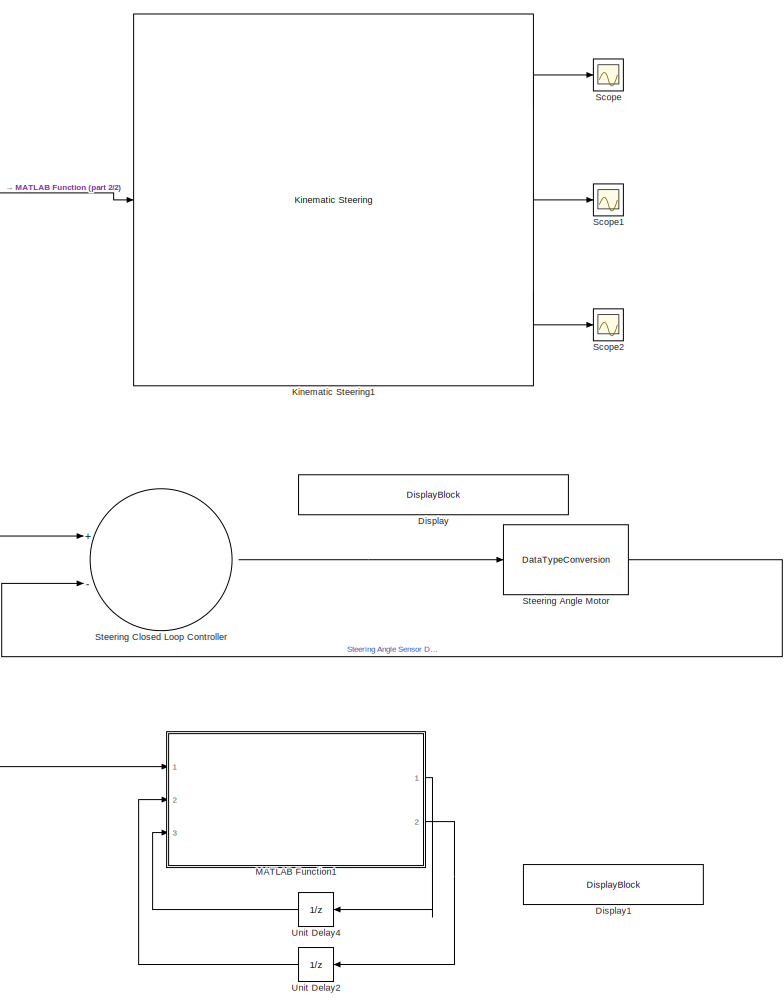
[diagram: root canvas - part 1/2, right side, full height]
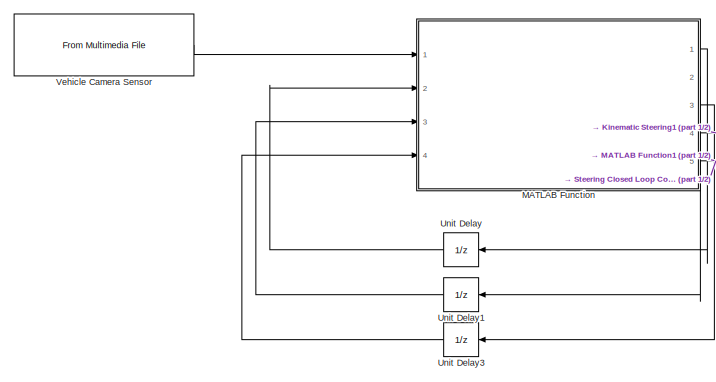
[diagram: root canvas - part 2/2, top left region]
MODEL slx_c340db5ce98e
KIND model
CONFIG AbsTol = auto
CONFIG EnableMultiTasking = off
CONFIG FixedStep = auto
CONFIG MaxStep = auto
CONFIG MinStep = auto
CONFIG RelTol = 1e-3
CONFIG SampleTimeConstraint = Unconstrained
CONFIG Solver = VariableStepAuto
CONFIG SolverName = VariableStepAuto
CONFIG StartTime = 0.0
CONFIG StopTime = 10.0
BLOCK [DisplayBlock] Display
  Commented = on
  LabelPosition = Hide
  WebBlockId = 23
BLOCK [DisplayBlock] Display1
  LabelPosition = Hide
  WebBlockId = 32
BLOCK [Reference] Kinematic Steering1  REF=vehdynlibsteering/Kinematic Steering
  Ports = [1, 3]
  SourceBlock = vehdynlibsteering/Kinematic Steering
  SourceProductBaseCode = VE
  SourceProductName = Vehicle Dynamics Blockset
  SourceType = Kinematic Steering
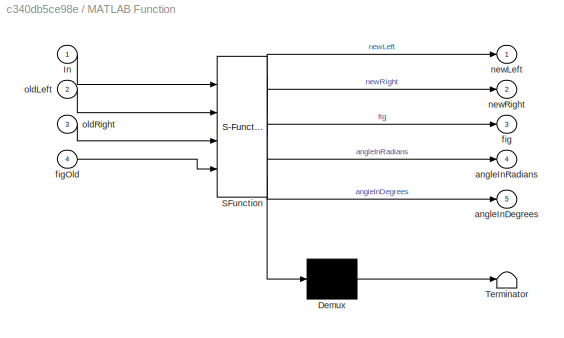
BLOCK [SubSystem] MATLAB Function
  ErrorFcn = Stateflow.Translate.translate
  PermitHierarchicalResolution = ExplicitOnly
  Ports = [4, 5]
  RequestExecContextInheritance = off
  SFBlockType = MATLAB Function
  TreatAsAtomicUnit = on
BLOCK [Demux] MATLAB Function/ Demux 
  Outputs = 1
  Ports = [1, 1]
BLOCK [S-Function] MATLAB Function/ SFunction 
  EnableBusSupport = on
  FunctionName = sf_sfun
  PortCounts = [4 6]
  Ports = [4, 6]
  SFcnIsStateOwnerBlock = off
  SFunctionDeploymentMode = off
  Tag = Stateflow S-Function CPower_LKA 2
BLOCK [Terminator] MATLAB Function/ Terminator 
BLOCK [Inport] MATLAB Function/In
  IconDisplay = Port number
BLOCK [Outport] MATLAB Function/angleInDegrees
  IconDisplay = Port number
  Port = 5
BLOCK [Outport] MATLAB Function/angleInRadians
  IconDisplay = Port number
  Port = 4
BLOCK [Outport] MATLAB Function/fig
  IconDisplay = Port number
  Port = 3
BLOCK [Inport] MATLAB Function/figOld
  IconDisplay = Port number
  Port = 4
BLOCK [Outport] MATLAB Function/newLeft
  IconDisplay = Port number
BLOCK [Outport] MATLAB Function/newRight
  IconDisplay = Port number
  Port = 2
BLOCK [Inport] MATLAB Function/oldLeft
  IconDisplay = Port number
  Port = 2
BLOCK [Inport] MATLAB Function/oldRight
  IconDisplay = Port number
  Port = 3
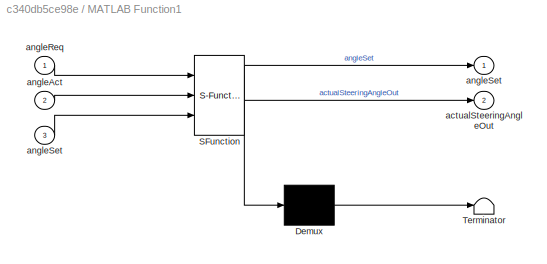
BLOCK [SubSystem] MATLAB Function1
  ErrorFcn = Stateflow.Translate.translate
  PermitHierarchicalResolution = ExplicitOnly
  Ports = [3, 2]
  RequestExecContextInheritance = off
  SFBlockType = MATLAB Function
  TreatAsAtomicUnit = on
BLOCK [Demux] MATLAB Function1/ Demux 
  Outputs = 1
  Ports = [1, 1]
BLOCK [S-Function] MATLAB Function1/ SFunction 
  EnableBusSupport = on
  FunctionName = sf_sfun
  PortCounts = [3 3]
  Ports = [3, 3]
  SFcnIsStateOwnerBlock = off
  SFunctionDeploymentMode = off
  Tag = Stateflow S-Function CPower_LKA 1
BLOCK [Terminator] MATLAB Function1/ Terminator 
BLOCK [Outport] MATLAB Function1/actualSteeringAngleOut
  IconDisplay = Port number
  Port = 2
BLOCK [Inport] MATLAB Function1/angleAct
  IconDisplay = Port number
  Port = 2
BLOCK [Inport] MATLAB Function1/angleReq
  IconDisplay = Port number
BLOCK [Outport] MATLAB Function1/angleSet
  IconDisplay = Port number
BLOCK [Inport] MATLAB Function1/angleSet 
  IconDisplay = Port number
  Port = 3
BLOCK [Scope] Scope
  Floating = off
  NumInputPorts = 1
  Ports = [1]
  ScopeSpecificationString = Simulink.scopes.TimeScopeBlockCfg('CurrentConfiguration', extmgr.ConfigurationSet(extmgr.Configuration('Core','General UI',true),extmgr.Configuration('Core','Source UI',true),extmgr.Configuration('Sources','WiredSimulink',true),extmgr.Configuration('Visuals','Time Domain',true,'SerializedDisplays',{struct('MinYLimReal','90.00000','MaxYLimReal','110.00000','YLabelReal','','MinYLimMag','90.00000','M...<+1383ch>
BLOCK [Scope] Scope1
  Floating = off
  NumInputPorts = 1
  Ports = [1]
  ScopeSpecificationString = Simulink.scopes.TimeScopeBlockCfg('CurrentConfiguration', extmgr.ConfigurationSet(extmgr.Configuration('Core','General UI',true),extmgr.Configuration('Core','Source UI',true),extmgr.Configuration('Sources','WiredSimulink',true,'DataLoggingVariableName','ScopeData1'),extmgr.Configuration('Visuals','Time Domain',true,'SerializedDisplays',{struct('MinYLimReal','0.00148','MaxYLimReal','0.00917','YLabe...<+1415ch>
BLOCK [Scope] Scope2
  Floating = off
  NumInputPorts = 1
  Ports = [1]
  ScopeSpecificationString = Simulink.scopes.TimeScopeBlockCfg('CurrentConfiguration', extmgr.ConfigurationSet(extmgr.Configuration('Core','General UI',true),extmgr.Configuration('Core','Source UI',true),extmgr.Configuration('Sources','WiredSimulink',true,'DataLoggingVariableName','ScopeData2'),extmgr.Configuration('Visuals','Time Domain',true,'SerializedDisplays',{struct('MinYLimReal','0.00148','MaxYLimReal','0.00917','YLabe...<+1415ch>
BLOCK [DataTypeConversion] Steering Angle Motor
  Commented = on
  RndMeth = Floor
  SaturateOnIntegerOverflow = off
BLOCK [Sum] Steering Closed Loop Controller
  Commented = on
  InputSameDT = off
  Inputs = +-
  OutDataTypeStr = Inherit: Inherit via internal rule
  Ports = [2, 1]
  SaturateOnIntegerOverflow = off
BLOCK [UnitDelay] Unit Delay
  InputProcessing = Elements as channels (sample based)
  SampleTime = -1
BLOCK [UnitDelay] Unit Delay1
  InputProcessing = Elements as channels (sample based)
  SampleTime = -1
BLOCK [UnitDelay] Unit Delay2
  InputProcessing = Elements as channels (sample based)
  SampleTime = -1
BLOCK [UnitDelay] Unit Delay3
  InputProcessing = Elements as channels (sample based)
  SampleTime = -1
BLOCK [UnitDelay] Unit Delay4
  InputProcessing = Elements as channels (sample based)
  SampleTime = -1
BLOCK [Reference] Vehicle Camera Sensor  REF=dspvision/From Multimedia File
  Ports = [0, 1]
  SourceBlock = dspvision/From Multimedia File
  SourceProductBaseCode = VP
  SourceProductName = Computer Vision System Toolbox
  SourceType = From Multimedia File
LINE Kinematic Steering1:1 -> Scope:1
LINE Kinematic Steering1:2 -> Scope1:1
LINE Kinematic Steering1:3 -> Scope2:1
LINE MATLAB Function1:1 -> Unit Delay4:1
LINE MATLAB Function1:2 -> Unit Delay2:1
LINE MATLAB Function:1 -> Unit Delay:1
LINE MATLAB Function:2 -> Unit Delay1:1
LINE MATLAB Function:3 -> Unit Delay3:1
LINE MATLAB Function:4 -> Kinematic Steering1:1
NET MATLAB Function:5 -> MATLAB Function1:1, Steering Closed Loop Controller:1
LINE Steering Angle Motor:1 -> Steering Closed Loop Controller:2
LINE Steering Closed Loop Controller:1 -> Steering Angle Motor:1
LINE Unit Delay1:1 -> MATLAB Function:3
LINE Unit Delay2:1 -> MATLAB Function1:2
LINE Unit Delay3:1 -> MATLAB Function:4
LINE Unit Delay4:1 -> MATLAB Function1:3
LINE Unit Delay:1 -> MATLAB Function:2
LINE Vehicle Camera Sensor:1 -> MATLAB Function:1
note: NET lines group one-source signal fan-out (src -> all destinations, sorted); 1:1 wires keep LINE
CHART MATLAB Function1 states=1 transitions=1
  STATE_LABEL 'eML_blk_kernel()'
  STATE_LABEL 'SCRIPT:\nfunction [angleSet,actualSteeringAngleOut] = steeringAngleController(angleReq, angleAct,angleSet)\n\nif not(angleSet)\n  angleAct = 90; %% assume 90 starting point\nend\n\nif(angleReq>angleAct)\n    actualSteeringAngleOut = angleAct+1;\n    angleSet =1;\n    \nelseif (angleReq<angleAct)\n    actualSteeringAngleOut = angleAct-1;\n    angleSet =1;\nelse\n    actualSteeringAngleOut = angleAct;\n    angleSet...<+9ch>'
CHART MATLAB Function states=1 transitions=1
  STATE_LABEL 'eML_blk_kernel()'
  STATE_LABEL "SCRIPT:\nfunction [newLeft, newRight, fig, angleInRadians, angleInDegrees] =  lane_keep_assist(In, oldLeft, oldRight, figOld)\n\nfig = zeros(1,3);\nnewLeft = zeros(2,2);\nnewRight = zeros(2,2);\nangleInRadians=0;\nangleInDegrees=90;\n\ncoder.extrinsic('imshow');\ncoder.extrinsic('polyxpoly');\ncoder.extrinsic('num2str');\ncoder.extrinsic('strcat');\ncoder.extrinsic('deg2rad');\n\nif isempty(figOld)\n    fig = fig...<+3608ch>"
